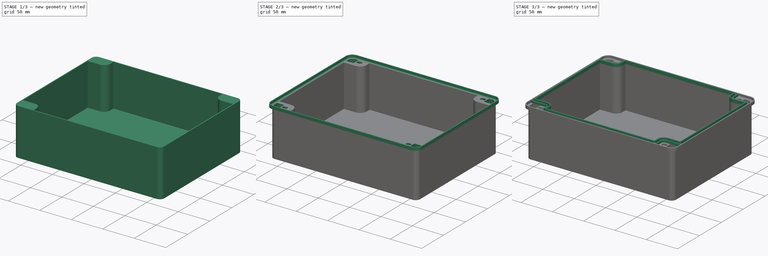
[diagram: build sequence overview — one tinted view per stage of 3, left to right]
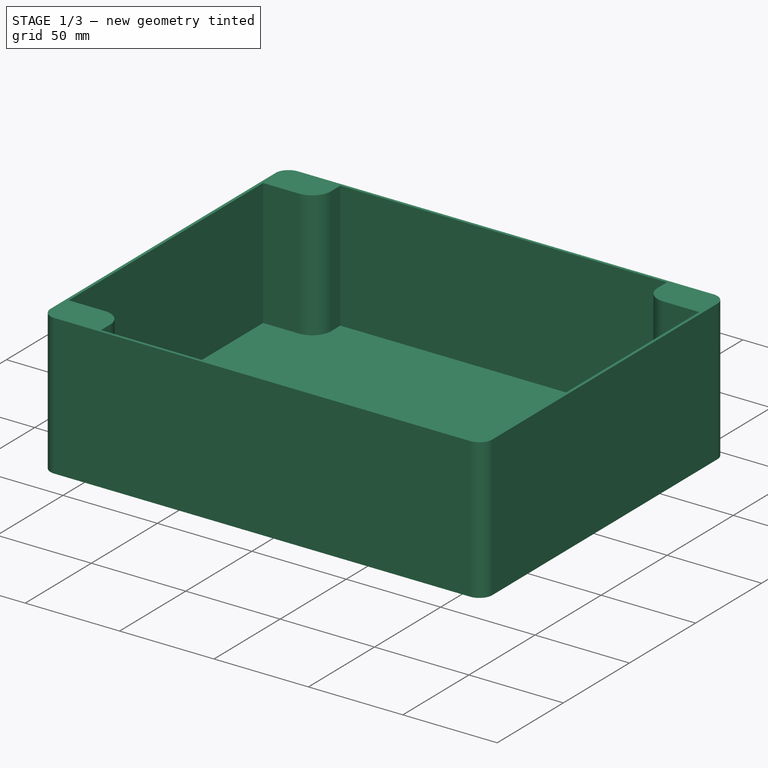
[diagram: stage 1 of 3 — iso view after this stage's code; geometry added in this stage tinted green]
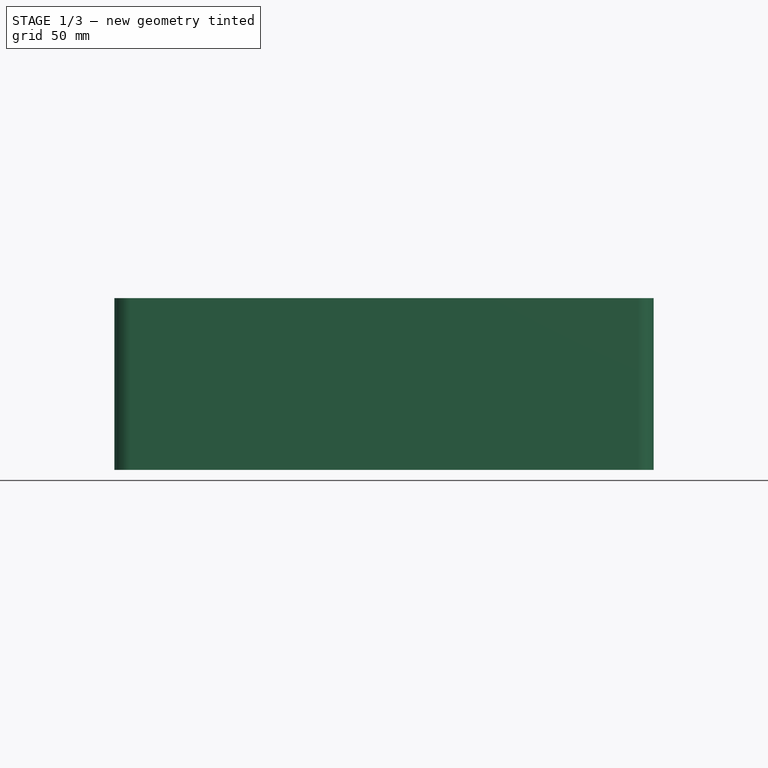
[diagram: stage 1 of 3 — front view after this stage's code; geometry added in this stage tinted green]
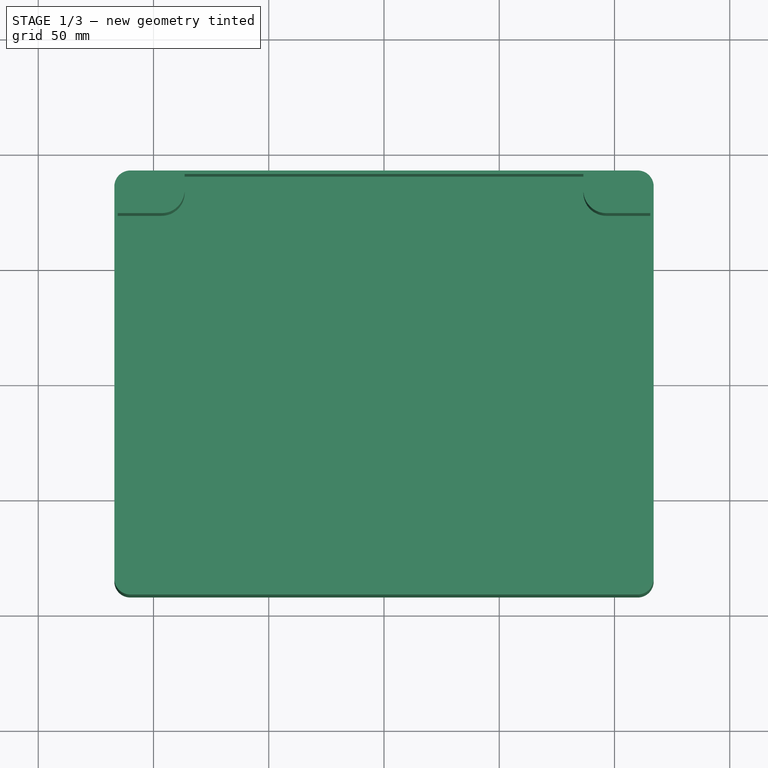
[diagram: stage 1 of 3 — top view after this stage's code; geometry added in this stage tinted green]
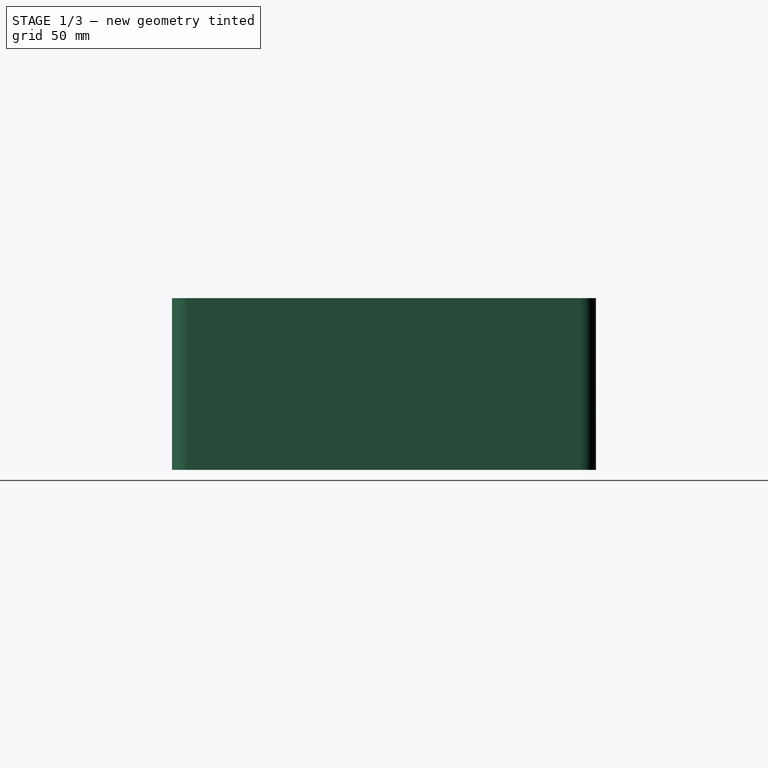
[diagram: stage 1 of 3 — right view after this stage's code; geometry added in this stage tinted green]
FCSTD DOCUMENT  (FreeCAD 0.18R4 (GitTag))
Label: DxnBox
License: All rights reserved
LicenseURL: http://en.wikipedia.org/wiki/All_rights_reserved
objects: Sketcher::SketchObject×7, PartDesign::Pad×3, PartDesign::Pocket×2, PartDesign::AdditivePipe×1, PartDesign::Body×1
note: 20 computed .brp shape members not serialized (recipe doc carries the construction recipe); baked Part::Feature solids carry a one-line shape summary decoded from their .brp

FEATURE [Sketcher::SketchObject] Sketch  label="OutsideContour"
  sketch-geometry (8):
    g0: ArcOfCircle CenterX=-110.08 CenterY=85.08 CenterZ=0 NormalX=0 NormalY=0 NormalZ=1 AngleXU=0 Radius=6.92 StartAngle=1.5708 EndAngle=3.14159
    g1: ArcOfCircle CenterX=110.08 CenterY=85.08 CenterZ=0 NormalX=0 NormalY=0 NormalZ=1 AngleXU=0 Radius=6.92 StartAngle=-9e-16 EndAngle=1.5708
    g2: ArcOfCircle CenterX=110.08 CenterY=-85.08 CenterZ=0 NormalX=0 NormalY=0 NormalZ=1 AngleXU=0 Radius=6.92 StartAngle=4.71239 EndAngle=6.28319
    g3: ArcOfCircle CenterX=-110.08 CenterY=-85.08 CenterZ=0 NormalX=0 NormalY=0 NormalZ=1 AngleXU=0 Radius=6.92 StartAngle=3.14159 EndAngle=4.71239
    g4: LineSegment StartX=-110.08 StartY=92 StartZ=0 EndX=110.08 EndY=92 EndZ=0
    g5: LineSegment StartX=117 StartY=85.08 StartZ=0 EndX=117 EndY=-85.08 EndZ=0
    g6: LineSegment StartX=110.08 StartY=-92 StartZ=0 EndX=-110.08 EndY=-92 EndZ=0
    g7: LineSegment StartX=-117 StartY=-85.08 StartZ=0 EndX=-117 EndY=85.08 EndZ=0
  constraints (17):
    c: Horizontal(g4)
    c: Horizontal(g6)
    c: Vertical(g5)
    c: Tangent(g4,g1) = 1.5708
    c: Tangent(g1,g5) = 1.5708
    c: Tangent(g5,g2) = 1.5708
    c: Tangent(g0,g4) = 1.5708
    c: Tangent(g0,g7) = 1.5708
    c: Tangent(g3,g7) = 1.5708
    c: Tangent(g6,g3) = 1.5708
    c: Tangent(g2,g6) = 1.5708
    c: Symmetric(g1,g0,g-2)
    c: Symmetric(g1,g2,g-1)
    c: Symmetric(g2,g3,g-2)
    c: DistanceX(g-1,g1) = 117
    c: DistanceY(g-1,g1) = 92
    c: DistanceX(g-1,g1) = 110.08
FEATURE [PartDesign::Pad] Pad  label="MainExterior"
  Length = 74.5
  Length2 = 100
  Profile = -> Sketch
  Type = 0
FEATURE [Sketcher::SketchObject] Sketch001  label="InsideContour"
  MapMode = 5
  Placement = pos=(0,0,74.5) rot=(0,0,1;0rad)
  Support = -> [Pad]
  sketch-geometry (16):
    g0: LineSegment StartX=-115.5 StartY=73.5 StartZ=0 EndX=-115.5 EndY=-73.5 EndZ=0
    g1: LineSegment StartX=-115.5 StartY=73.5 StartZ=0 EndX=-96.5 EndY=73.5 EndZ=0
    g2: LineSegment StartX=-86.5 StartY=90.5 StartZ=0 EndX=-86.5 EndY=83.5 EndZ=0
    g3: LineSegment StartX=-86.5 StartY=90.5 StartZ=0 EndX=86.5 EndY=90.5 EndZ=0
    g4: LineSegment StartX=86.5 StartY=90.5 StartZ=0 EndX=86.5 EndY=83.5 EndZ=0
    g5: LineSegment StartX=96.5 StartY=73.5 StartZ=0 EndX=115.5 EndY=73.5 EndZ=0
    g6: LineSegment StartX=115.5 StartY=73.5 StartZ=0 EndX=115.5 EndY=-73.5 EndZ=0
    g7: LineSegment StartX=115.5 StartY=-73.5 StartZ=0 EndX=96.5 EndY=-73.5 EndZ=0
    g8: LineSegment StartX=86.5 StartY=-83.5 StartZ=0 EndX=86.5 EndY=-90.5 EndZ=0
    g9: LineSegment StartX=86.5 StartY=-90.5 StartZ=0 EndX=-86.5 EndY=-90.5 EndZ=0
    g10: LineSegment StartX=-86.5 StartY=-90.5 StartZ=0 EndX=-86.5 EndY=-83.5 EndZ=0
    g11: LineSegment StartX=-115.5 StartY=-73.5 StartZ=0 EndX=-96.5 EndY=-73.5 EndZ=0
    g12: ArcOfCircle CenterX=-96.5 CenterY=83.5 CenterZ=0 NormalX=0 NormalY=0 NormalZ=1 AngleXU=0 Radius=10 StartAngle=4.71239 EndAngle=6.28319
    g13: ArcOfCircle CenterX=96.5 CenterY=83.5 CenterZ=0 NormalX=0 NormalY=0 NormalZ=1 AngleXU=0 Radius=10 StartAngle=3.14159 EndAngle=4.71239
    g14: ArcOfCircle CenterX=96.5 CenterY=-83.5 CenterZ=0 NormalX=0 NormalY=0 NormalZ=1 AngleXU=0 Radius=10 StartAngle=1.5708 EndAngle=3.14159
    g15: ArcOfCircle CenterX=-96.5 CenterY=-83.5 CenterZ=0 NormalX=0 NormalY=0 NormalZ=1 AngleXU=0 Radius=10 StartAngle=-9e-16 EndAngle=1.5708
  constraints (35):
    c: Coincident(g5,g6)
    c: Coincident(g4,g3)
    c: Horizontal(g7)
    c: Horizontal(g11)
    c: Horizontal(g1)
    c: Horizontal(g5)
    c: Vertical(g4)
    c: Coincident(g2,g3)
    c: Coincident(g1,g0)
    c: Coincident(g0,g11)
    c: Coincident(g10,g9)
    c: Coincident(g8,g9)
    c: Coincident(g7,g6)
    c: Symmetric(g13,g12,g-2)
    c: Symmetric(g14,g15,g-2)
    c: Symmetric(g14,g13,g-1)
    c: Symmetric(g3,g2,g-2)
    c: Symmetric(g0,g5,g-2)
    c: Symmetric(g0,g6,g-2)
    c: Symmetric(g5,g6,g-1)
    c: Symmetric(g8,g9,g-2)
    c: Symmetric(g8,g3,g-1)
    c: Tangent(g4,g13) = -1.5708
    c: Tangent(g13,g5) = -1.5708
    c: Tangent(g12,g2) = 1.5708
    c: Tangent(g12,g1) = -1.5708
    c: Tangent(g15,g11) = 1.5708
    c: Tangent(g15,g10) = -1.5708
    c: Tangent(g14,g8) = -1.5708
    c: Tangent(g14,g7) = -1.5708
    c: DistanceY(g-1,g3) = 90.5
    c: DistanceX(g-1,g5) = 115.5
    c: DistanceY(g5,g3) = 17
    c: DistanceX(g4,g5) = 29
    c: DistanceY(g4,g3) = 7
FEATURE [PartDesign::Pocket] Pocket  label="MainSpace"
  BaseFeature = -> Pad
  Length = 67
  Length2 = 100
  Profile = -> Sketch001
  Type = 0
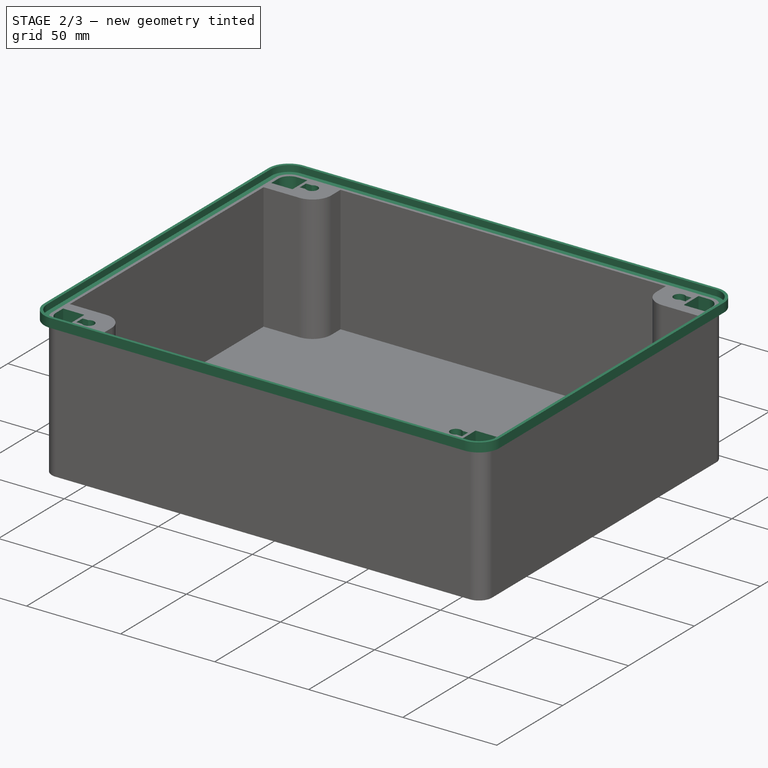
[diagram: stage 2 of 3 — iso view after this stage's code; geometry added in this stage tinted green]
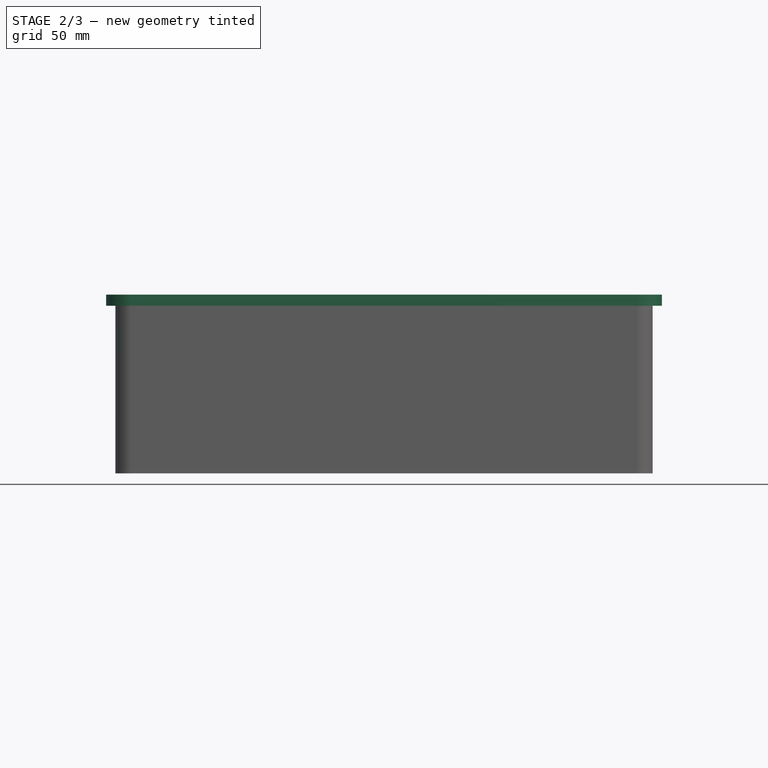
[diagram: stage 2 of 3 — front view after this stage's code; geometry added in this stage tinted green]
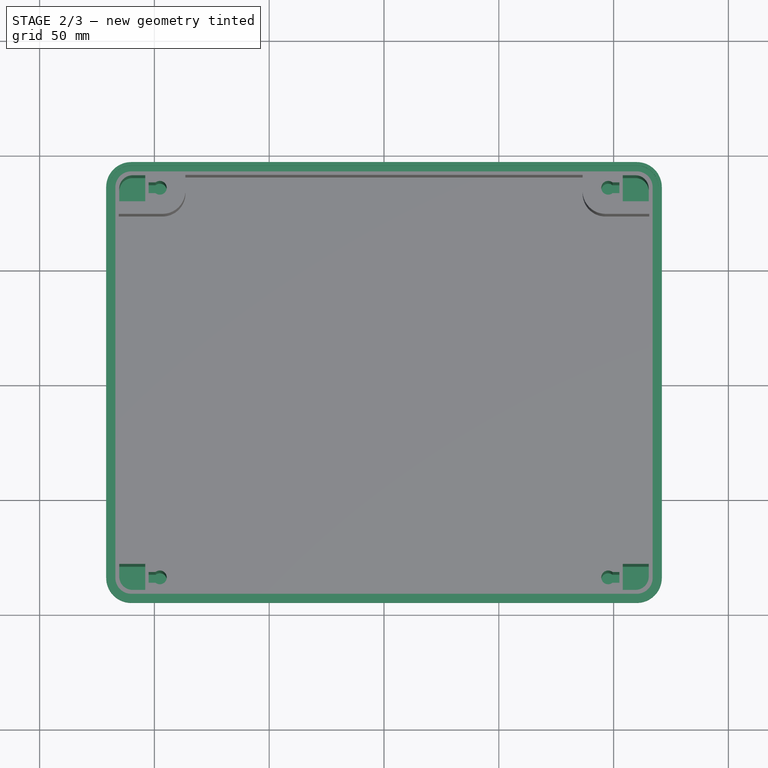
[diagram: stage 2 of 3 — top view after this stage's code; geometry added in this stage tinted green]
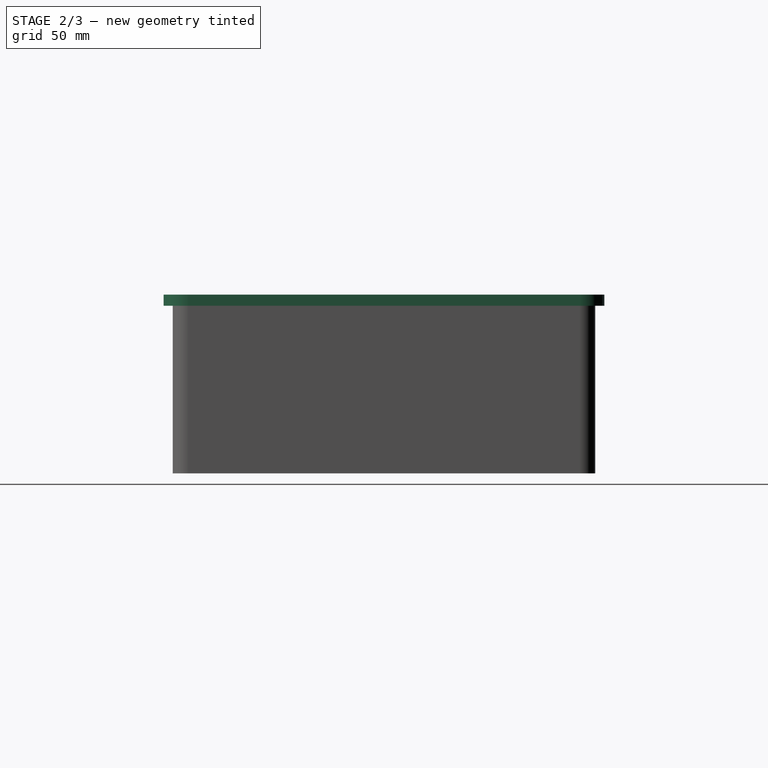
[diagram: stage 2 of 3 — right view after this stage's code; geometry added in this stage tinted green]
FEATURE [Sketcher::SketchObject] CopySketch002  label="Holes"
  Placement = pos=(0,0,74.5) rot=(0,0,1;0rad)
  sketch-geometry (36):
    g0: LineSegment StartX=104 StartY=79 StartZ=0 EndX=115.3 EndY=79 EndZ=0
    g1: LineSegment StartX=104 StartY=90.3 StartZ=0 EndX=104 EndY=79 EndZ=0
    g2: LineSegment StartX=104 StartY=90.3 StartZ=0 EndX=109.5 EndY=90.3 EndZ=0
    g3: LineSegment StartX=115.3 StartY=84.5 StartZ=0 EndX=115.3 EndY=79 EndZ=0
    g4: ArcOfCircle CenterX=109.5 CenterY=84.5 CenterZ=0 NormalX=0 NormalY=0 NormalZ=1 AngleXU=0 Radius=5.8 StartAngle=-9e-16 EndAngle=1.5708
    g5: ArcOfCircle CenterX=97.6352 CenterY=84.85 CenterZ=0 NormalX=0 NormalY=0 NormalZ=1 AngleXU=0 Radius=3 StartAngle=0.90001 EndAngle=5.38317
    g6: LineSegment StartX=99.5 StartY=87.2 StartZ=0 EndX=102.5 EndY=87.2 EndZ=0
    g7: LineSegment StartX=99.5 StartY=82.5 StartZ=0 EndX=102.5 EndY=82.5 EndZ=0
    g8: LineSegment StartX=102.5 StartY=87.2 StartZ=0 EndX=102.5 EndY=82.5 EndZ=0
    g9: LineSegment StartX=-104 StartY=90.3 StartZ=0 EndX=-104 EndY=79 EndZ=0
    g10: LineSegment StartX=-104 StartY=79 StartZ=0 EndX=-115.3 EndY=79 EndZ=0
    g11: LineSegment StartX=-115.3 StartY=79 StartZ=0 EndX=-115.3 EndY=84.5 EndZ=0
    g12: LineSegment StartX=-104 StartY=90.3 StartZ=0 EndX=-109.5 EndY=90.3 EndZ=0
    g13: LineSegment StartX=-102.5 StartY=82.5 StartZ=0 EndX=-102.5 EndY=87.2 EndZ=0
    g14: LineSegment StartX=-102.5 StartY=82.5 StartZ=0 EndX=-99.5 EndY=82.5 EndZ=0
    g15: LineSegment StartX=-102.5 StartY=87.2 StartZ=0 EndX=-99.5 EndY=87.2 EndZ=0
    g16: ArcOfCircle CenterX=-109.5 CenterY=84.5 CenterZ=0 NormalX=0 NormalY=0 NormalZ=1 AngleXU=0 Radius=5.8 StartAngle=1.5708 EndAngle=3.14159
    g17: ArcOfCircle CenterX=-97.6352 CenterY=84.85 CenterZ=0 NormalX=0 NormalY=0 NormalZ=1 AngleXU=0 Radius=3 StartAngle=4.0416 EndAngle=8.52477
    g18: LineSegment StartX=104 StartY=-79 StartZ=0 EndX=104 EndY=-90.3 EndZ=0
    g19: LineSegment StartX=104 StartY=-79 StartZ=0 EndX=115.3 EndY=-79 EndZ=0
    g20: LineSegment StartX=115.3 StartY=-79 StartZ=0 EndX=115.3 EndY=-84.5 EndZ=0
    g21: LineSegment StartX=104 StartY=-90.3 StartZ=0 EndX=109.5 EndY=-90.3 EndZ=0
    g22: ArcOfCircle CenterX=109.5 CenterY=-84.5 CenterZ=0 NormalX=0 NormalY=0 NormalZ=1 AngleXU=0 Radius=5.8 StartAngle=4.71239 EndAngle=6.28319
    g23: LineSegment StartX=99.5 StartY=-82.5 StartZ=0 EndX=102.5 EndY=-82.5 EndZ=0
    g24: LineSegment StartX=102.5 StartY=-82.5 StartZ=0 EndX=102.5 EndY=-87.2 EndZ=0
    g25: LineSegment StartX=102.5 StartY=-87.2 StartZ=0 EndX=99.5 EndY=-87.2 EndZ=0
    g26: ArcOfCircle CenterX=97.6352 CenterY=-84.85 CenterZ=0 NormalX=0 NormalY=0 NormalZ=1 AngleXU=0 Radius=3 StartAngle=0.90001 EndAngle=5.38317
    g27: LineSegment StartX=-104 StartY=-79 StartZ=0 EndX=-115.3 EndY=-79 EndZ=0
    g28: LineSegment StartX=-104 StartY=-79 StartZ=0 EndX=-104 EndY=-90.3 EndZ=0
    g29: LineSegment StartX=-104 StartY=-90.3 StartZ=0 EndX=-109.5 EndY=-90.3 EndZ=0
    g30: LineSegment StartX=-115.3 StartY=-79 StartZ=0 EndX=-115.3 EndY=-84.5 EndZ=0
    g31: LineSegment StartX=-102.5 StartY=-82.5 StartZ=0 EndX=-102.5 EndY=-87.2 EndZ=0
    g32: LineSegment StartX=-102.5 StartY=-82.5 StartZ=0 EndX=-99.5 EndY=-82.5 EndZ=0
    g33: LineSegment StartX=-102.5 StartY=-87.2 StartZ=0 EndX=-99.5 EndY=-87.2 EndZ=0
    g34: ArcOfCircle CenterX=-109.5 CenterY=-84.5 CenterZ=0 NormalX=0 NormalY=0 NormalZ=1 AngleXU=0 Radius=5.8 StartAngle=3.14159 EndAngle=4.71239
    g35: ArcOfCircle CenterX=-97.6352 CenterY=-84.85 CenterZ=0 NormalX=0 NormalY=0 NormalZ=1 AngleXU=0 Radius=3 StartAngle=4.0416 EndAngle=8.52477
  constraints (89):
    c: Coincident(g1,g0)
    c: Coincident(g0,g3)
    c: Horizontal(g0)
    c: Horizontal(g2)
    c: Vertical(g3)
    c: Vertical(g1)
    c: Coincident(g2,g1)
    c: Tangent(g4,g2) = 1.5708
    c: Tangent(g4,g3) = 1.5708
    c: Coincident(g6,g8)
    c: Coincident(g8,g7)
    c: Coincident(g7,g5)
    c: Coincident(g6,g5)
    c: Horizontal(g6)
    c: Horizontal(g7)
    c: Vertical(g8)
    c: DistanceX(g7,g0) = 1.5
    c: DistanceX(g0,g0) = 11.3
    c: Equal(g1,g0)
    c: Radius(g5) = 3
    c: DistanceY(g7,g6) = 4.7
    c: Equal(g6,g7)
    c: DistanceX(g5,g7) = 3
    c: DistanceY(g-1,g1) = 90.3
    c: DistanceX(g-1,g0) = 115.3
    c: DistanceX(g1,g2) = 5.5
    c: DistanceY(g0,g7) = 3.5
    c: Vertical(g9)
    c: Horizontal(g10)
    c: Horizontal(g12)
    c: Horizontal(g14)
    c: Coincident(g9,g12)
    c: Coincident(g9,g10)
    c: Coincident(g11,g10)
    c: Coincident(g11,g16)
    c: Coincident(g16,g12)
    c: Coincident(g13,g14)
    c: Coincident(g13,g15)
    c: Symmetric(g9,g1,g-2)
    c: Symmetric(g13,g6,g-2)
    c: Coincident(g17,g15)
    c: Coincident(g17,g14)
    c: Symmetric(g17,g5,g-2)
    c: Symmetric(g15,g5,g-2)
    c: Symmetric(g16,g4,g-2)
    c: Symmetric(g10,g0,g-2)
    c: Symmetric(g11,g3,g-2)
    c: Symmetric(g13,g7,g-2)
    c: Coincident(g18,g19)
    c: Coincident(g19,g20)
    c: Coincident(g21,g18)
    c: Horizontal(g19)
    c: Vertical(g20)
    c: Vertical(g18)
    c: Symmetric(g22,g4,g-1)
    c: Symmetric(g18,g0,g-1)
    c: Tangent(g22,g21) = -1.5708
    c: Tangent(g22,g20) = 1.5708
    c: Symmetric(g21,g2,g-1)
    c: Coincident(g23,g24)
    c: Coincident(g25,g24)
    c: Horizontal(g25)
    c: Vertical(g24)
    c: Equal(g23,g25)
    c: Coincident(g23,g26)
    c: Coincident(g25,g26)
    c: Symmetric(g23,g7,g-1)
    c: Symmetric(g23,g5,g-1)
    c: Symmetric(g26,g5,g-1)
    c: Vertical(g28)
    c: Vertical(g30)
    c: Horizontal(g29)
    c: Coincident(g28,g27)
    c: Coincident(g30,g27)
    c: Coincident(g29,g28)
    c: Coincident(g31,g32)
    c: Coincident(g31,g33)
    c: Equal(g32,g33)
    c: Coincident(g35,g33)
    c: Coincident(g35,g32)
    c: Symmetric(g27,g18,g-2)
    c: Symmetric(g34,g22,g-2)
    c: Tangent(g34,g29) = 1.5708
    c: Tangent(g34,g30) = -1.5708
    c: Symmetric(g27,g10,g-1)
    c: Symmetric(g31,g13,g-1)
    c: Symmetric(g31,g24,g-2)
    c: Symmetric(g15,g33,g-1)
    c: Symmetric(g35,g17,g-1)
FEATURE [PartDesign::Pocket] Pocket001  label="Lock"
  BaseFeature = -> Pocket
  Length = 70
  Length2 = 100
  Profile = -> CopySketch002
  Type = 0
FEATURE [Sketcher::SketchObject] Sketch002
  MapMode = 5
  Placement = pos=(0,0,74.5) rot=(0,0,1;0rad)
  Support = -> [Pocket001]
  expr: Constraints[16] = Sketch.Constraints[16]
  expr: Constraints[15] = Sketch.Constraints[15]
  expr: Constraints[14] = Sketch.Constraints[14]
  sketch-geometry (8):
    g0: ArcOfCircle CenterX=-110.08 CenterY=85.08 CenterZ=0 NormalX=0 NormalY=0 NormalZ=1 AngleXU=0 Radius=6.92 StartAngle=1.5708 EndAngle=3.14159
    g1: ArcOfCircle CenterX=110.08 CenterY=85.08 CenterZ=0 NormalX=0 NormalY=0 NormalZ=1 AngleXU=0 Radius=6.92 StartAngle=-9e-16 EndAngle=1.5708
    g2: ArcOfCircle CenterX=110.08 CenterY=-85.08 CenterZ=0 NormalX=0 NormalY=0 NormalZ=1 AngleXU=0 Radius=6.92 StartAngle=4.71239 EndAngle=6.28319
    g3: ArcOfCircle CenterX=-110.08 CenterY=-85.08 CenterZ=0 NormalX=0 NormalY=0 NormalZ=1 AngleXU=0 Radius=6.92 StartAngle=3.14159 EndAngle=4.71239
    g4: LineSegment StartX=-110.08 StartY=92 StartZ=0 EndX=110.08 EndY=92 EndZ=0
    g5: LineSegment StartX=117 StartY=85.08 StartZ=0 EndX=117 EndY=-85.08 EndZ=0
    g6: LineSegment StartX=110.08 StartY=-92 StartZ=0 EndX=-110.08 EndY=-92 EndZ=0
    g7: LineSegment StartX=-117 StartY=-85.08 StartZ=0 EndX=-117 EndY=85.08 EndZ=0
  constraints (17):
    c: Horizontal(g4)
    c: Horizontal(g6)
    c: Vertical(g5)
    c: Tangent(g4,g1) = 1.5708
    c: Tangent(g1,g5) = 1.5708
    c: Tangent(g5,g2) = 1.5708
    c: Tangent(g0,g4) = 1.5708
    c: Tangent(g0,g7) = 1.5708
    c: Tangent(g3,g7) = 1.5708
    c: Tangent(g6,g3) = 1.5708
    c: Tangent(g2,g6) = 1.5708
    c: Symmetric(g1,g0,g-2)
    c: Symmetric(g1,g2,g-1)
    c: Symmetric(g2,g3,g-2)
    c: DistanceX(g-1,g1) = 117
    c: DistanceY(g-1,g1) = 92
    c: DistanceX(g-1,g1) = 110.08
FEATURE [Sketcher::SketchObject] Sketch003
  MapMode = 5
  Placement = pos=(0,0,0) rot=(1,0,0;1.5708rad)
  Support = -> [XZ_Plane]
  sketch-geometry (6):
    g0: LineSegment StartX=117 StartY=74.5 StartZ=0 EndX=119.5 EndY=74.5 EndZ=0
    g1: LineSegment StartX=119.5 StartY=74.5 StartZ=0 EndX=119.5 EndY=77.8 EndZ=0
    g2: LineSegment StartX=119.5 StartY=77.8 StartZ=0 EndX=121 EndY=77.8 EndZ=0
    g3: LineSegment StartX=121 StartY=77.8 StartZ=0 EndX=121 EndY=73 EndZ=0
    g4: LineSegment StartX=121 StartY=73 StartZ=0 EndX=117 EndY=73 EndZ=0
    g5: LineSegment StartX=117 StartY=74.5 StartZ=0 EndX=117 EndY=73 EndZ=0
  constraints (18):
    c: Horizontal(g0)
    c: Horizontal(g2)
    c: Horizontal(g4)
    c: Vertical(g5)
    c: Vertical(g1)
    c: Vertical(g3)
    c: Coincident(g5,g0)
    c: Coincident(g5,g4)
    c: Coincident(g0,g1)
    c: Coincident(g2,g1)
    c: Coincident(g2,g3)
    c: Coincident(g4,g3)
    c: DistanceX(g1,g2) = 1.5
    c: DistanceY(g4,g0) = 1.5
    c: DistanceX(g4,g3) = 4
    c: DistanceY(g3,g2) = 4.8
    c: DistanceX(g-1,g0) = 117
    c: DistanceY(g-1,g0) = 74.5
FEATURE [PartDesign::AdditivePipe] AdditivePipe  label="OutsideSeal"
  AuxilleryCurvelinear = true
  AuxillerySpineTangent = false
  BaseFeature = -> Pocket001
  Binormal = (0,0,0)
  Mode = 0
  Profile = -> Sketch003
  Spine = -> Sketch002
  SpineTangent = false
  Transformation = 0
  Transition = 0
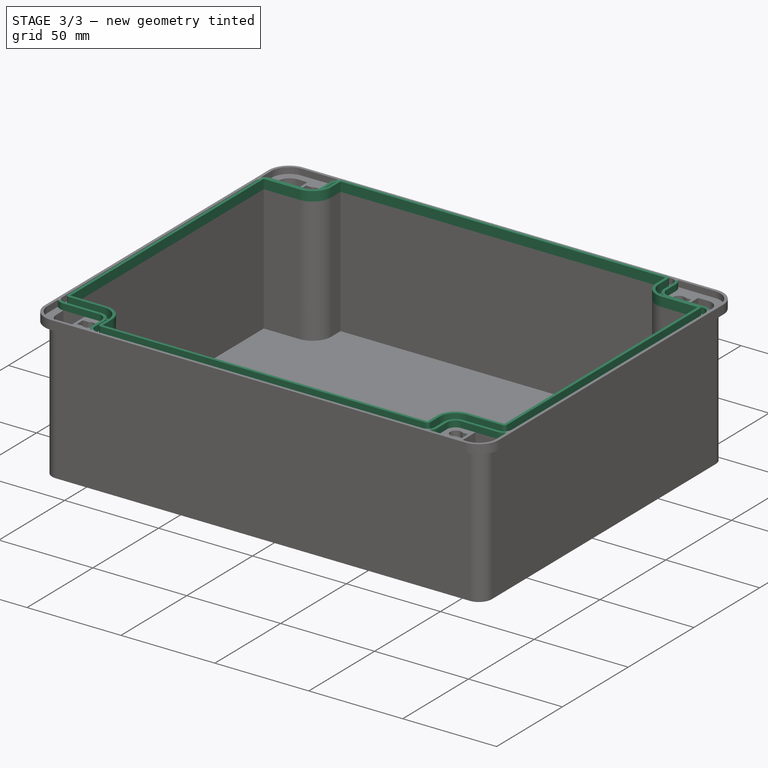
[diagram: stage 3 of 3 — iso view after this stage's code; geometry added in this stage tinted green]
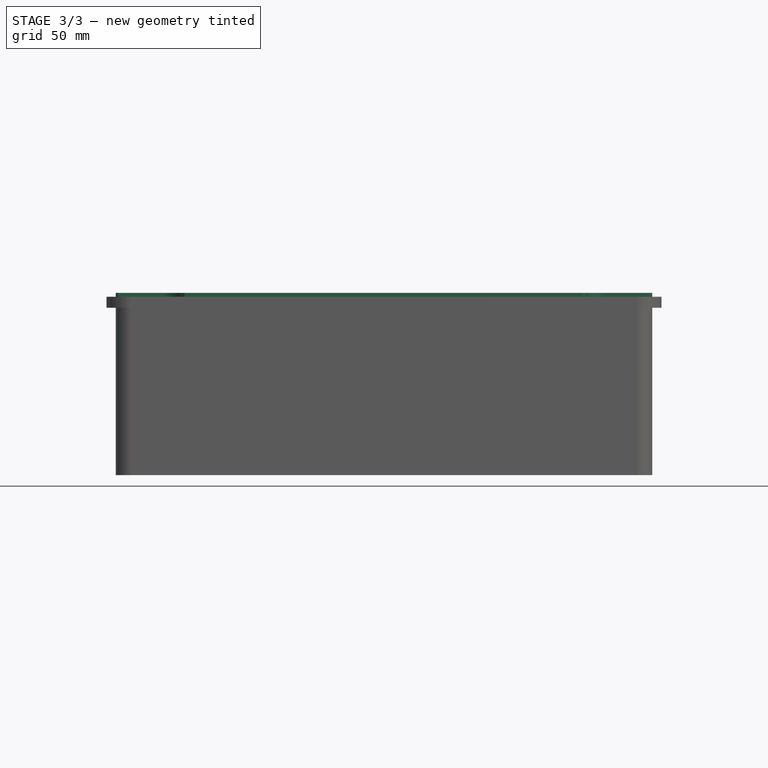
[diagram: stage 3 of 3 — front view after this stage's code; geometry added in this stage tinted green]
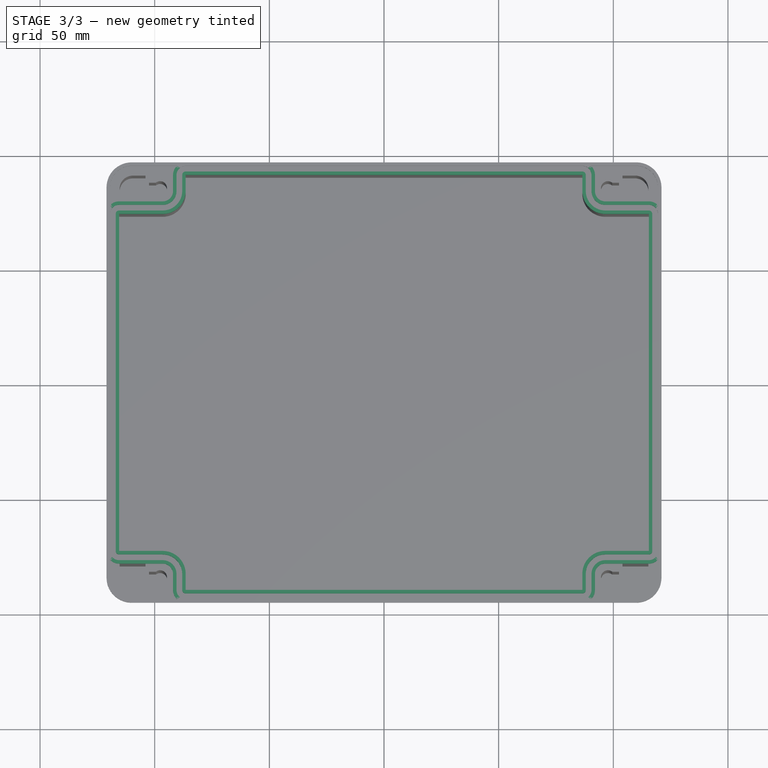
[diagram: stage 3 of 3 — top view after this stage's code; geometry added in this stage tinted green]
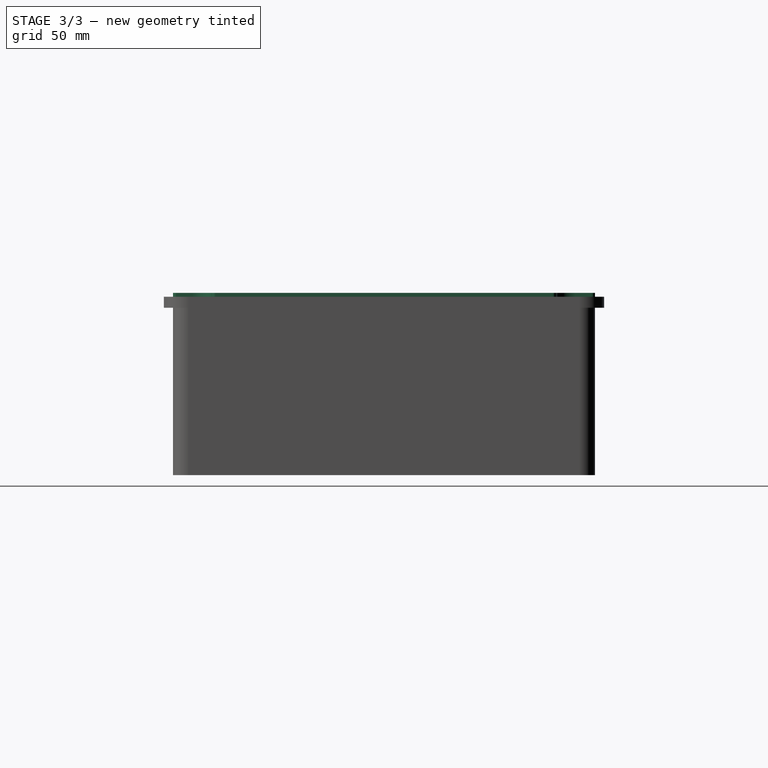
[diagram: stage 3 of 3 — right view after this stage's code; geometry added in this stage tinted green]
FEATURE [Sketcher::SketchObject] Sketch004  label="InnerSeal"
  MapMode = 5
  Placement = pos=(0,0,74.5) rot=(0,0,1;0rad)
  Support = -> [AdditivePipe]
  expr: Constraints[34] = Sketch001.Constraints[34]
  expr: Constraints[33] = Sketch001.Constraints[33]
  expr: Constraints[32] = Sketch001.Constraints[32]
  expr: Constraints[31] = Sketch001.Constraints[31]
  expr: Constraints[30] = Sketch001.Constraints[30]
  sketch-geometry (40):
    g0: LineSegment StartX=-115.5 StartY=73.5 StartZ=0 EndX=-115.5 EndY=-73.5 EndZ=0
    g1: LineSegment StartX=-115.5 StartY=73.5 StartZ=0 EndX=-96.5 EndY=73.5 EndZ=0
    g2: LineSegment StartX=-86.5 StartY=90.5 StartZ=0 EndX=-86.5 EndY=83.5 EndZ=0
    g3: LineSegment StartX=-86.5 StartY=90.5 StartZ=0 EndX=86.5 EndY=90.5 EndZ=0
    g4: LineSegment StartX=86.5 StartY=90.5 StartZ=0 EndX=86.5 EndY=83.5 EndZ=0
    g5: LineSegment StartX=96.5 StartY=73.5 StartZ=0 EndX=115.5 EndY=73.5 EndZ=0
    g6: LineSegment StartX=115.5 StartY=73.5 StartZ=0 EndX=115.5 EndY=-73.5 EndZ=0
    g7: LineSegment StartX=115.5 StartY=-73.5 StartZ=0 EndX=96.5 EndY=-73.5 EndZ=0
    g8: LineSegment StartX=86.5 StartY=-83.5 StartZ=0 EndX=86.5 EndY=-90.5 EndZ=0
    g9: LineSegment StartX=86.5 StartY=-90.5 StartZ=0 EndX=-86.5 EndY=-90.5 EndZ=0
    g10: LineSegment StartX=-86.5 StartY=-90.5 StartZ=0 EndX=-86.5 EndY=-83.5 EndZ=0
    g11: LineSegment StartX=-115.5 StartY=-73.5 StartZ=0 EndX=-96.5 EndY=-73.5 EndZ=0
    g12: ArcOfCircle CenterX=-96.5 CenterY=83.5 CenterZ=0 NormalX=0 NormalY=0 NormalZ=1 AngleXU=0 Radius=10 StartAngle=4.71239 EndAngle=6.28319
    g13: ArcOfCircle CenterX=96.5 CenterY=83.5 CenterZ=0 NormalX=0 NormalY=0 NormalZ=1 AngleXU=0 Radius=10 StartAngle=3.14159 EndAngle=4.71239
    g14: ArcOfCircle CenterX=96.5 CenterY=-83.5 CenterZ=0 NormalX=0 NormalY=0 NormalZ=1 AngleXU=0 Radius=10 StartAngle=1.5708 EndAngle=3.14159
    g15: ArcOfCircle CenterX=-96.5 CenterY=-83.5 CenterZ=0 NormalX=0 NormalY=0 NormalZ=1 AngleXU=0 Radius=10 StartAngle=2e-16 EndAngle=1.5708
    g16: LineSegment StartX=-117 StartY=73.5 StartZ=0 EndX=-117 EndY=-73.5 EndZ=0
    g17: LineSegment StartX=-115.5 StartY=75 StartZ=0 EndX=-96.5 EndY=75 EndZ=0
    g18: LineSegment StartX=-88 StartY=90.5 StartZ=0 EndX=-88 EndY=83.5 EndZ=0
    g19: LineSegment StartX=-86.5 StartY=92 StartZ=0 EndX=86.5 EndY=92 EndZ=0
    g20: LineSegment StartX=88 StartY=90.5 StartZ=0 EndX=88 EndY=83.5 EndZ=0
    g21: LineSegment StartX=96.5 StartY=75 StartZ=0 EndX=115.5 EndY=75 EndZ=0
    g22: LineSegment StartX=117 StartY=73.5 StartZ=0 EndX=117 EndY=-73.5 EndZ=0
    g23: LineSegment StartX=115.5 StartY=-75 StartZ=0 EndX=96.5 EndY=-75 EndZ=0
    g24: LineSegment StartX=88 StartY=-83.5 StartZ=0 EndX=88 EndY=-90.5 EndZ=0
    g25: LineSegment StartX=86.5 StartY=-92 StartZ=0 EndX=-86.5 EndY=-92 EndZ=0
    g26: LineSegment StartX=-88 StartY=-90.5 StartZ=0 EndX=-88 EndY=-83.5 EndZ=0
    g27: LineSegment StartX=-96.5 StartY=-75 StartZ=0 EndX=-115.5 EndY=-75 EndZ=0
    g28: ArcOfCircle CenterX=-86.5 CenterY=90.5 CenterZ=0 NormalX=0 NormalY=0 NormalZ=1 AngleXU=0 Radius=1.5 StartAngle=1.5708 EndAngle=3.14159
    g29: ArcOfCircle CenterX=-96.5 CenterY=83.5 CenterZ=0 NormalX=0 NormalY=0 NormalZ=1 AngleXU=0 Radius=8.5 StartAngle=4.71239 EndAngle=6.28319
    g30: ArcOfCircle CenterX=86.5 CenterY=90.5 CenterZ=0 NormalX=0 NormalY=0 NormalZ=1 AngleXU=0 Radius=1.5 StartAngle=-2.7e-15 EndAngle=1.5708
    g31: ArcOfCircle CenterX=96.5 CenterY=83.5 CenterZ=0 NormalX=0 NormalY=0 NormalZ=1 AngleXU=0 Radius=8.5 StartAngle=3.14159 EndAngle=4.71239
    g32: ArcOfCircle CenterX=-115.5 CenterY=73.5 CenterZ=0 NormalX=0 NormalY=0 NormalZ=1 AngleXU=0 Radius=1.5 StartAngle=1.5708 EndAngle=3.14159
    g33: ArcOfCircle CenterX=115.5 CenterY=73.5 CenterZ=0 NormalX=0 NormalY=0 NormalZ=1 AngleXU=0 Radius=1.5 StartAngle=-2.7e-15 EndAngle=1.5708
    g34: ArcOfCircle CenterX=115.5 CenterY=-73.5 CenterZ=0 NormalX=0 NormalY=0 NormalZ=1 AngleXU=0 Radius=1.5 StartAngle=4.71239 EndAngle=6.28319
    g35: ArcOfCircle CenterX=96.5 CenterY=-83.5 CenterZ=0 NormalX=0 NormalY=0 NormalZ=1 AngleXU=0 Radius=8.5 StartAngle=1.5708 EndAngle=3.14159
    g36: ArcOfCircle CenterX=86.5 CenterY=-90.5 CenterZ=0 NormalX=0 NormalY=0 NormalZ=1 AngleXU=0 Radius=1.5 StartAngle=4.71239 EndAngle=6.28319
    g37: ArcOfCircle CenterX=-86.5 CenterY=-90.5 CenterZ=0 NormalX=0 NormalY=0 NormalZ=1 AngleXU=0 Radius=1.5 StartAngle=3.14159 EndAngle=4.71239
    g38: ArcOfCircle CenterX=-96.5 CenterY=-83.5 CenterZ=0 NormalX=0 NormalY=0 NormalZ=1 AngleXU=0 Radius=8.5 StartAngle=4e-16 EndAngle=1.5708
    g39: ArcOfCircle CenterX=-115.5 CenterY=-73.5 CenterZ=0 NormalX=0 NormalY=0 NormalZ=1 AngleXU=0 Radius=1.5 StartAngle=3.14159 EndAngle=4.71239
  constraints (83):
    c: Coincident(g5,g6)
    c: Coincident(g4,g3)
    c: Horizontal(g7)
    c: Horizontal(g11)
    c: Horizontal(g1)
    c: Horizontal(g5)
    c: Vertical(g4)
    c: Coincident(g2,g3)
    c: Coincident(g1,g0)
    c: Coincident(g0,g11)
    c: Coincident(g10,g9)
    c: Coincident(g8,g9)
    c: Coincident(g7,g6)
    c: Symmetric(g13,g12,g-2)
    c: Symmetric(g14,g15,g-2)
    c: Symmetric(g14,g13,g-1)
    c: Symmetric(g3,g2,g-2)
    c: Symmetric(g0,g5,g-2)
    c: Symmetric(g0,g6,g-2)
    c: Symmetric(g5,g6,g-1)
    c: Symmetric(g8,g9,g-2)
    c: Symmetric(g8,g3,g-1)
    c: Tangent(g4,g13) = -1.5708
    c: Tangent(g13,g5) = -1.5708
    c: Tangent(g12,g2) = 1.5708
    c: Tangent(g12,g1) = -1.5708
    c: Tangent(g15,g11) = 1.5708
    c: Tangent(g15,g10) = -1.5708
    c: Tangent(g14,g8) = -1.5708
    c: Tangent(g14,g7) = -1.5708
    c: DistanceY(g-1,g3) = 90.5
    c: DistanceX(g-1,g5) = 115.5
    c: DistanceY(g5,g3) = 17
    c: DistanceX(g4,g5) = 29
    c: DistanceY(g4,g3) = 7
    c: Horizontal(g25)
    c: Horizontal(g23)
    c: Horizontal(g21)
    c: Horizontal(g19)
    c: Horizontal(g17)
    c: Horizontal(g27)
    c: Vertical(g26)
    c: Vertical(g24)
    c: Vertical(g22)
    c: Vertical(g20)
    c: Vertical(g18)
    c: Coincident(g32,g0)
    c: Tangent(g32,g16) = -1.5708
    c: Tangent(g17,g32) = 1.5708
    c: Coincident(g29,g12)
    c: Coincident(g28,g2)
    c: Tangent(g18,g28) = -1.5708
    c: Tangent(g29,g18) = 1.5708
    c: Tangent(g29,g17) = -1.5708
    c: Tangent(g28,g19) = 1.5708
    c: Coincident(g30,g3)
    c: Tangent(g30,g19) = 1.5708
    c: Tangent(g20,g30) = 1.5708
    c: Coincident(g31,g13)
    c: Tangent(g20,g31) = -1.5708
    c: Tangent(g31,g21) = -1.5708
    c: Coincident(g33,g5)
    c: Tangent(g21,g33) = 1.5708
    c: Tangent(g33,g22) = 1.5708
    c: Tangent(g34,g22) = 1.5708
    c: Tangent(g23,g34) = 1.5708
    c: Tangent(g23,g35) = -1.5708
    c: Tangent(g35,g24) = -1.5708
    c: Tangent(g24,g36) = 1.5708
    c: Tangent(g36,g25) = 1.5708
    c: Coincident(g37,g9)
    c: Tangent(g37,g25) = 1.5708
    c: Tangent(g26,g37) = 1.5708
    c: Tangent(g38,g26) = -1.5708
    c: Tangent(g38,g27) = -1.5708
    c: Coincident(g38,g15)
    c: Coincident(g39,g0)
    c: Tangent(g39,g27) = 1.5708
    c: Tangent(g39,g16) = -1.5708
    c: DistanceY(g2,g19) = 1.5
    c: Coincident(g34,g6)
    c: Coincident(g35,g14)
    c: Coincident(g36,g8)
FEATURE [PartDesign::Pad] Pad001
  BaseFeature = -> AdditivePipe
  Length = 5
  Length2 = 100
  Profile = -> Sketch004
  Type = 0
FEATURE [Sketcher::SketchObject] Sketch005
  Placement = pos=(0,0,74.5) rot=(0,0,1;0rad)
  Support = -> [XY_Plane]
  expr: Constraints[0] = Sketch001.Constraints[31]
  sketch-geometry (48):
    g0: LineSegment StartX=96.5 StartY=79 StartZ=0 EndX=115.5 EndY=79 EndZ=0
    g1: LineSegment StartX=92 StartY=90.5 StartZ=0 EndX=92 EndY=83.5 EndZ=0
    g2: ArcOfCircle CenterX=86.5 CenterY=90.5 CenterZ=0 NormalX=0 NormalY=0 NormalZ=1 AngleXU=0 Radius=5.5 StartAngle=1e-15 EndAngle=0.81434
    g3: ArcOfCircle CenterX=96.5 CenterY=83.5 CenterZ=0 NormalX=0 NormalY=0 NormalZ=1 AngleXU=0 Radius=4.5 StartAngle=3.14159 EndAngle=4.71239
    g4: ArcOfCircle CenterX=115.5 CenterY=73.5 CenterZ=0 NormalX=0 NormalY=0 NormalZ=1 AngleXU=0 Radius=5.5 StartAngle=0.756456 EndAngle=1.5708
    g5: LineSegment StartX=86.5 StartY=94.5 StartZ=0 EndX=90.2749 EndY=94.5 EndZ=0
    g6: LineSegment StartX=90.5 StartY=90.5 StartZ=0 EndX=90.5 EndY=83.5 EndZ=0
    g7: LineSegment StartX=96.5 StartY=77.5 StartZ=0 EndX=115.5 EndY=77.5 EndZ=0
    g8: ArcOfCircle CenterX=86.5 CenterY=90.5 CenterZ=0 NormalX=0 NormalY=0 NormalZ=1 AngleXU=0 Radius=4 StartAngle=1e-16 EndAngle=1.5708
    g9: ArcOfCircle CenterX=96.5 CenterY=83.5 CenterZ=0 NormalX=0 NormalY=0 NormalZ=1 AngleXU=0 Radius=6 StartAngle=3.14159 EndAngle=4.71239
    g10: LineSegment StartX=119.5 StartY=73.5 StartZ=0 EndX=119.5 EndY=77.2749 EndZ=0
    g11: ArcOfCircle CenterX=115.5 CenterY=73.5 CenterZ=0 NormalX=0 NormalY=0 NormalZ=1 AngleXU=0 Radius=4 StartAngle=4e-16 EndAngle=1.5708
    g12: LineSegment StartX=96.5 StartY=-77.5 StartZ=0 EndX=115.5 EndY=-77.5 EndZ=0
    g13: LineSegment StartX=96.5 StartY=-79 StartZ=0 EndX=115.5 EndY=-79 EndZ=0
    g14: LineSegment StartX=90.5 StartY=-83.5 StartZ=0 EndX=90.5 EndY=-90.5 EndZ=0
    g15: LineSegment StartX=92 StartY=-83.5 StartZ=0 EndX=92 EndY=-90.5 EndZ=0
    g16: ArcOfCircle CenterX=96.5 CenterY=-83.5 CenterZ=0 NormalX=0 NormalY=0 NormalZ=1 AngleXU=0 Radius=4.5 StartAngle=1.5708 EndAngle=3.14159
    g17: ArcOfCircle CenterX=96.5 CenterY=-83.5 CenterZ=0 NormalX=0 NormalY=0 NormalZ=1 AngleXU=0 Radius=6 StartAngle=1.5708 EndAngle=3.14159
    g18: LineSegment StartX=86.5 StartY=-94.5 StartZ=0 EndX=90.2749 EndY=-94.5 EndZ=0
    g19: ArcOfCircle CenterX=115.5 CenterY=-73.5 CenterZ=0 NormalX=0 NormalY=0 NormalZ=1 AngleXU=0 Radius=4 StartAngle=4.71239 EndAngle=6.28319
    g20: ArcOfCircle CenterX=115.5 CenterY=-73.5 CenterZ=0 NormalX=0 NormalY=0 NormalZ=1 AngleXU=0 Radius=5.5 StartAngle=4.71239 EndAngle=5.52673
    g21: LineSegment StartX=119.5 StartY=-73.5 StartZ=0 EndX=119.5 EndY=-77.2749 EndZ=0
    g22: ArcOfCircle CenterX=86.5 CenterY=-90.5 CenterZ=0 NormalX=0 NormalY=0 NormalZ=1 AngleXU=0 Radius=4 StartAngle=4.71239 EndAngle=6.28319
    g23: ArcOfCircle CenterX=86.5 CenterY=-90.5 CenterZ=0 NormalX=0 NormalY=0 NormalZ=1 AngleXU=0 Radius=5.5 StartAngle=5.46885 EndAngle=6.28319
    g24: LineSegment StartX=-119.5 StartY=-73.5 StartZ=0 EndX=-119.5 EndY=-77.2749 EndZ=0
    g25: LineSegment StartX=-90.2749 StartY=-94.5 StartZ=0 EndX=-86.5 EndY=-94.5 EndZ=0
    g26: LineSegment StartX=-92 StartY=-83.5 StartZ=0 EndX=-92 EndY=-90.5 EndZ=0
    g27: LineSegment StartX=-90.5 StartY=-83.5 StartZ=0 EndX=-90.5 EndY=-90.5 EndZ=0
    g28: LineSegment StartX=-115.5 StartY=-77.5 StartZ=0 EndX=-96.5 EndY=-77.5 EndZ=0
    g29: LineSegment StartX=-115.5 StartY=-79 StartZ=0 EndX=-96.5 EndY=-79 EndZ=0
    g30: ArcOfCircle CenterX=-96.5 CenterY=-83.5 CenterZ=0 NormalX=0 NormalY=0 NormalZ=1 AngleXU=0 Radius=6 StartAngle=8e-16 EndAngle=1.5708
    g31: ArcOfCircle CenterX=-96.5 CenterY=-83.5 CenterZ=0 NormalX=0 NormalY=0 NormalZ=1 AngleXU=0 Radius=4.5 StartAngle=5e-16 EndAngle=1.5708
    g32: ArcOfCircle CenterX=-115.5 CenterY=-73.5 CenterZ=0 NormalX=0 NormalY=0 NormalZ=1 AngleXU=0 Radius=4 StartAngle=3.14159 EndAngle=4.71239
    g33: ArcOfCircle CenterX=-115.5 CenterY=-73.5 CenterZ=0 NormalX=0 NormalY=0 NormalZ=1 AngleXU=0 Radius=5.5 StartAngle=3.89805 EndAngle=4.71239
    g34: ArcOfCircle CenterX=-86.5 CenterY=-90.5 CenterZ=0 NormalX=0 NormalY=0 NormalZ=1 AngleXU=0 Radius=4 StartAngle=3.14159 EndAngle=4.71239
    g35: ArcOfCircle CenterX=-86.5 CenterY=-90.5 CenterZ=0 NormalX=0 NormalY=0 NormalZ=1 AngleXU=0 Radius=5.5 StartAngle=3.14159 EndAngle=3.95593
    g36: LineSegment StartX=-119.5 StartY=77.2749 StartZ=0 EndX=-119.5 EndY=73.5 EndZ=0
    g37: LineSegment StartX=-90.2749 StartY=94.5 StartZ=0 EndX=-86.5 EndY=94.5 EndZ=0
    g38: ArcOfCircle CenterX=-115.5 CenterY=73.5 CenterZ=0 NormalX=0 NormalY=0 NormalZ=1 AngleXU=0 Radius=4 StartAngle=1.5708 EndAngle=3.14159
    g39: ArcOfCircle CenterX=-115.5 CenterY=73.5 CenterZ=0 NormalX=0 NormalY=0 NormalZ=1 AngleXU=0 Radius=5.5 StartAngle=1.5708 EndAngle=2.38514
    g40: LineSegment StartX=-115.5 StartY=79 StartZ=0 EndX=-96.5 EndY=79 EndZ=0
    g41: LineSegment StartX=-115.5 StartY=77.5 StartZ=0 EndX=-96.5 EndY=77.5 EndZ=0
    g42: ArcOfCircle CenterX=-96.5 CenterY=83.5 CenterZ=0 NormalX=0 NormalY=0 NormalZ=1 AngleXU=0 Radius=6 StartAngle=4.71239 EndAngle=6.28319
    g43: ArcOfCircle CenterX=-96.5 CenterY=83.5 CenterZ=0 NormalX=0 NormalY=0 NormalZ=1 AngleXU=0 Radius=4.5 StartAngle=4.71239 EndAngle=6.28319
    g44: ArcOfCircle CenterX=-86.5 CenterY=90.5 CenterZ=0 NormalX=0 NormalY=0 NormalZ=1 AngleXU=0 Radius=4 StartAngle=1.5708 EndAngle=3.14159
    g45: ArcOfCircle CenterX=-86.5 CenterY=90.5 CenterZ=0 NormalX=0 NormalY=0 NormalZ=1 AngleXU=0 Radius=5.5 StartAngle=2.32725 EndAngle=3.14159
    g46: LineSegment StartX=-92 StartY=90.5 StartZ=0 EndX=-92 EndY=83.5 EndZ=0
    g47: LineSegment StartX=-90.5 StartY=90.5 StartZ=0 EndX=-90.5 EndY=83.5 EndZ=0
  constraints (105):
    c: DistanceX(g-1,g11) = 115.5
    c: Vertical(g1)
    c: DistanceY(g-1,g0) = 79
    c: Horizontal(g5)
    c: Horizontal(g7)
    c: Vertical(g6)
    c: Tangent(g8,g6) = 1.5708
    c: Tangent(g9,g6) = -1.5708
    c: Tangent(g9,g7) = -1.5708
    c: Tangent(g11,g7) = 1.5708
    c: DistanceX(g6,g1) = 1.5
    c: Coincident(g2,g5)
    c: DistanceY(g7,g0) = 1.5
    c: Tangent(g1,g2) = 1.5708
    c: Tangent(g3,g1) = -1.5708
    c: Tangent(g4,g0) = 1.5708
    c: Coincident(g4,g10)
    c: Vertical(g10)
    c: Tangent(g0,g3) = -1.5708
    c: Tangent(g10,g11) = -1.5708
    c: Tangent(g5,g8) = 1.5708
    c: Symmetric(g33,g20,g-2)
    c: Symmetric(g4,g20,g-1)
    c: Coincident(g3,g9)
    c: Coincident(g2,g8)
    c: Coincident(g4,g11)
    c: Vertical(g14)
    c: Vertical(g15)
    c: Horizontal(g13)
    c: Horizontal(g12)
    c: Coincident(g17,g16)
    c: Tangent(g13,g16) = 1.5708
    c: Tangent(g16,g15) = -1.5708
    c: Tangent(g17,g12) = 1.5708
    c: Tangent(g14,g17) = -1.5708
    c: Horizontal(g18)
    c: Coincident(g20,g19)
    c: Tangent(g19,g12) = -1.5708
    c: Tangent(g20,g13) = -1.5708
    c: Vertical(g21)
    c: Coincident(g21,g19)
    c: Coincident(g21,g20)
    c: Coincident(g22,g23)
    c: Tangent(g22,g14) = 1.5708
    c: Tangent(g15,g23) = 1.5708
    c: Coincident(g23,g18)
    c: Coincident(g22,g18)
    c: Symmetric(g4,g20,g-1)
    c: Symmetric(g5,g18,g-1)
    c: Horizontal(g25)
    c: Horizontal(g28)
    c: Vertical(g26)
    c: Vertical(g24)
    c: Coincident(g35,g34)
    c: Coincident(g33,g32)
    c: Coincident(g31,g30)
    c: Tangent(g32,g28) = -1.5708
    c: Tangent(g29,g33) = -1.5708
    c: Coincident(g32,g24)
    c: Coincident(g24,g33)
    c: Tangent(g28,g30) = 1.5708
    c: Tangent(g29,g31) = 1.5708
    c: Coincident(g25,g35)
    c: Coincident(g25,g34)
    c: Tangent(g27,g34) = -1.5708
    c: Tangent(g26,g35) = -1.5708
    c: Tangent(g31,g26) = 1.5708
    c: Tangent(g30,g27) = 1.5708
    c: Symmetric(g18,g25,g-2)
    c: Symmetric(g24,g19,g-2)
    c: Symmetric(g29,g13,g-2)
    c: Horizontal(g37)
    c: Coincident(g38,g36)
    c: Coincident(g39,g36)
    c: Coincident(g39,g38)
    c: Horizontal(g40)
    c: Horizontal(g41)
    c: Tangent(g40,g39) = 1.5708
    c: Tangent(g41,g38) = 1.5708
    c: Coincident(g43,g42)
    c: Tangent(g40,g43) = -1.5708
    c: Tangent(g42,g41) = -1.5708
    c: Vertical(g46)
    c: Tangent(g46,g43) = 1.5708
    c: Tangent(g47,g42) = 1.5708
    c: Tangent(g44,g47) = -1.5708
    c: Tangent(g45,g46) = -1.5708
    c: Coincident(g44,g37)
    c: Coincident(g45,g37)
    c: Coincident(g45,g44)
    c: Symmetric(g5,g37,g-2)
    c: Symmetric(g36,g10,g-2)
    c: Symmetric(g36,g4,g-2)
    c: DistanceY(g-1,g2) = 90.5
    c: DistanceY(g-1,g3) = 83.5
    c: DistanceY(g-1,g4) = 73.5
    c: DistanceX(g-1,g3) = 96.5
    c: DistanceX(g-1,g2) = 86.5
    c: Symmetric(g44,g2,g-2)
    c: Symmetric(g16,g3,g-1)
    c: Symmetric(g22,g2,g-1)
    c: Symmetric(g42,g3,g-2)
    c: Symmetric(g38,g4,g-2)
    c: Symmetric(g34,g22,g-2)
    c: Symmetric(g30,g16,g-2)
FEATURE [PartDesign::Pad] Pad002
  BaseFeature = -> Pad001
  Length = 3.3
  Length2 = 100
  Profile = -> Sketch005
  Type = 0
FEATURE [PartDesign::Body] Body  label="Box"
  Group = -> [Sketch,Pad,Sketch001,Pocket,Pocket001,Sketch002,Sketch003,AdditivePipe,Sketch004,Pad001,Sketch005,Pad002]
  Origin = -> Origin
  Tip = -> Pad002
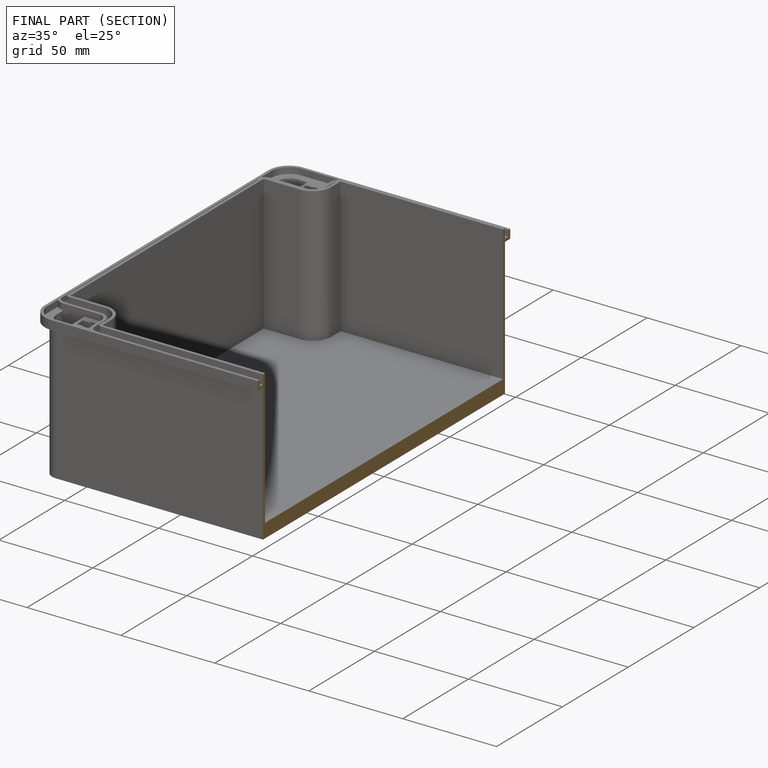
[diagram: finished part — half-section view (interior)]
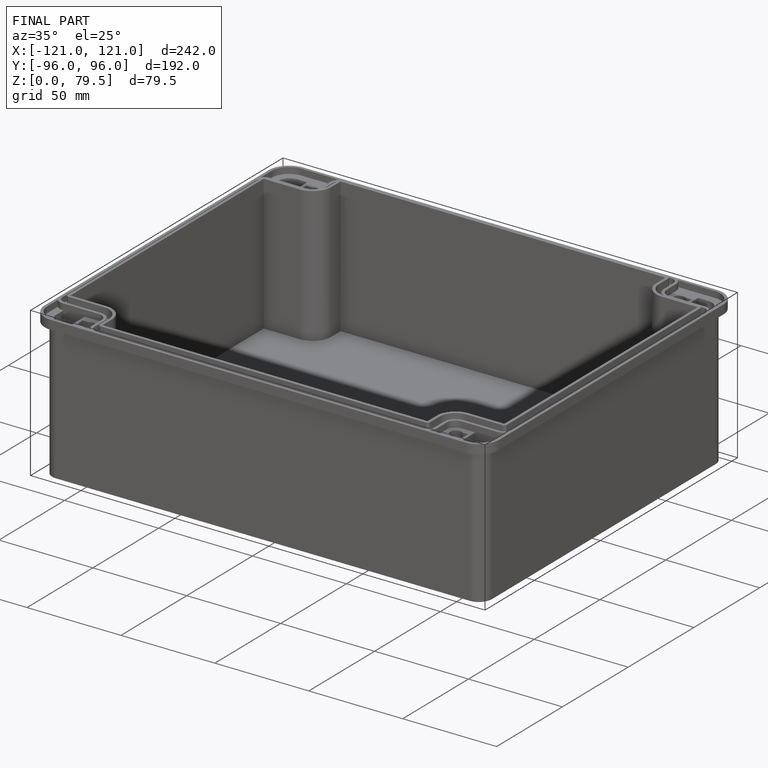
[diagram: finished part — iso view with bounding-box wireframe]
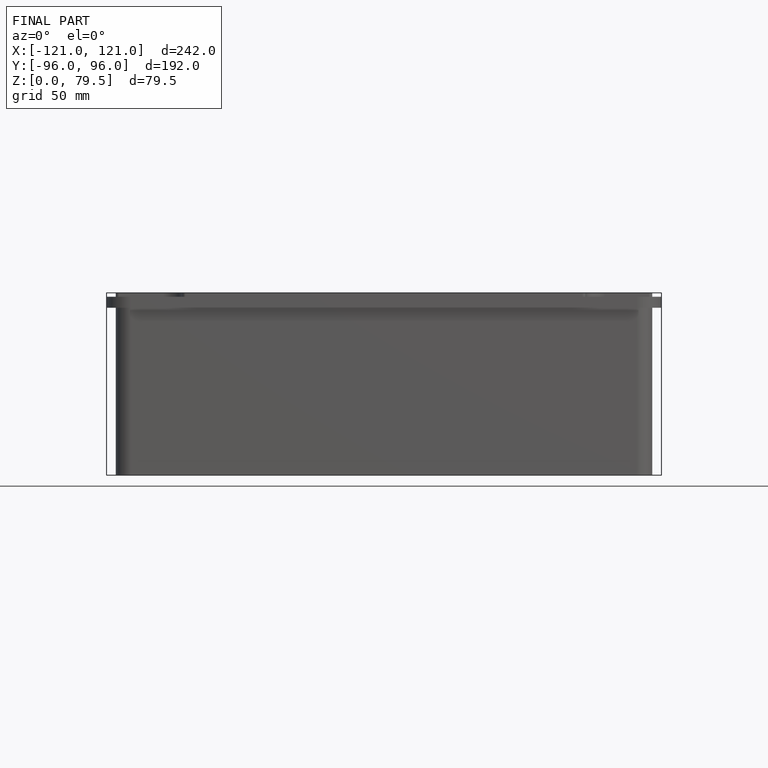
[diagram: finished part — front view with bounding-box wireframe]
